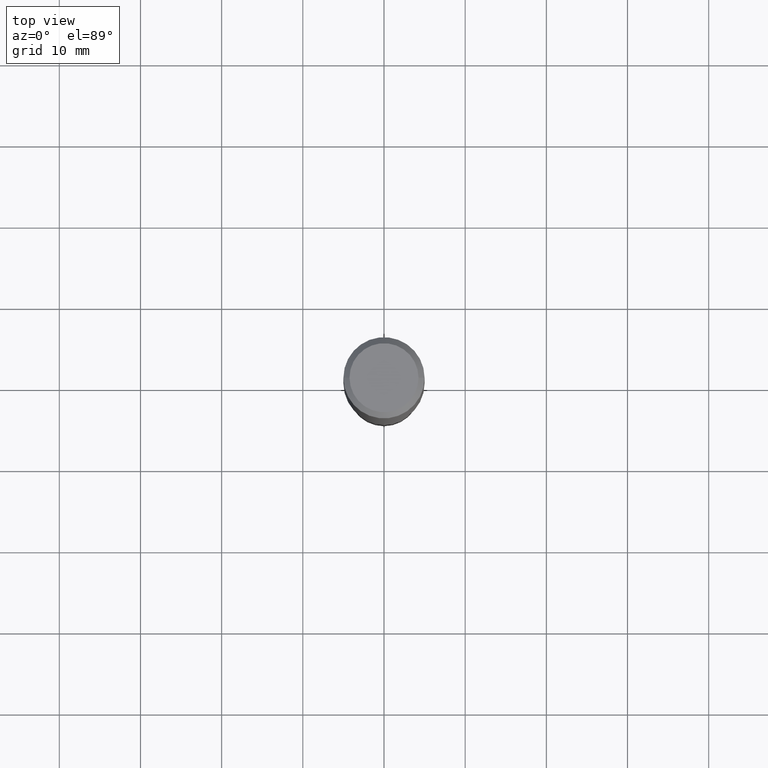
[diagram: clean part render]
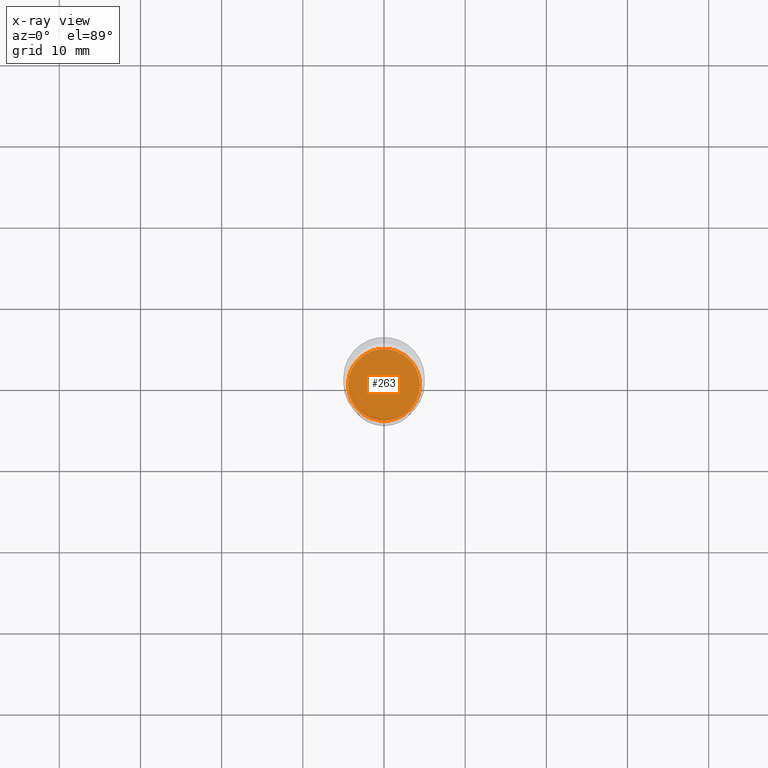
[diagram: x-ray — body ghosted, one internal face saturated and labeled with its STEP entity id]
A machine part, top view, then the same camera in x-ray: the body is ghosted and one INTERNAL B-rep face — a face not visible from any outside direction — is saturated and labeled: STEP entity #263.
In plain terms, the highlighted planar face has unit normal (-0, 0, 1).
Its self-contained STEP definition (entity closure, byte-faithful):
#7 = EDGE_LOOP ( 'NONE', ( #83, #121 ) ) ;
#24 = CARTESIAN_POINT ( 'NONE',  ( 7.088636537325996106E-29, -3.863007506136273756E-15, -2.003899999999999348 ) ) ;
#30 = DIRECTION ( 'NONE',  ( -2.445468806185136597E-29, 3.491481338843145583E-15, 1.000000000000000000 ) ) ;
#68 = CARTESIAN_POINT ( 'NONE',  ( 4.900474940714394018E-29, -6.996579454907777315E-15, -2.003899999999999348 ) ) ;
#83 = ORIENTED_EDGE ( 'NONE', *, *, #422, .F. ) ;
#121 = ORIENTED_EDGE ( 'NONE', *, *, #426, .F. ) ;
#143 = AXIS2_PLACEMENT_3D ( 'NONE', #24, #368, #331 ) ;
#149 = DIRECTION ( 'NONE',  ( -2.445468806185136597E-29, 3.491481338843145583E-15, 1.000000000000000000 ) ) ;
#174 = CIRCLE ( 'NONE', #189, 0.1746999999999999942 ) ;
#189 = AXIS2_PLACEMENT_3D ( 'NONE', #68, #149, #486 ) ;
#198 = AXIS2_PLACEMENT_3D ( 'NONE', #218, #30, #222 ) ;
#212 = FACE_OUTER_BOUND ( 'NONE', #7, .T. ) ;
#218 = CARTESIAN_POINT ( 'NONE',  ( 4.900474940714394018E-29, -6.996579454907777315E-15, -2.003899999999999348 ) ) ;
#222 = DIRECTION ( 'NONE',  ( 1.000000000000000000, -6.982962677686265922E-15, 0.000000000000000000 ) ) ;
#263 = ADVANCED_FACE ( 'NONE', ( #212 ), #478, .F. ) ;
#331 = DIRECTION ( 'NONE',  ( 1.000000000000000000, -6.982962677686265922E-15, 4.876176775795935793E-29 ) ) ;
#339 = CARTESIAN_POINT ( 'NONE',  ( -0.1746999999999999942, -5.752612068360772906E-15, -2.003899999999999348 ) ) ;
#350 = VERTEX_POINT ( 'NONE', #339 ) ;
#368 = DIRECTION ( 'NONE',  ( -2.438088387897960049E-29, 3.491481338843145188E-15, 1.000000000000000000 ) ) ;
#372 = CIRCLE ( 'NONE', #198, 0.1746999999999999942 ) ;
#391 = VERTEX_POINT ( 'NONE', #412 ) ;
#412 = CARTESIAN_POINT ( 'NONE',  ( 0.1746999999999999942, -8.216503034699568185E-15, -2.003899999999999348 ) ) ;
#422 = EDGE_CURVE ( 'NONE', #391, #350, #174, .T. ) ;
#426 = EDGE_CURVE ( 'NONE', #350, #391, #372, .T. ) ;
#478 = PLANE ( 'NONE',  #143 ) ;
#486 = DIRECTION ( 'NONE',  ( 1.000000000000000000, -6.982962677686265922E-15, 0.000000000000000000 ) ) ;